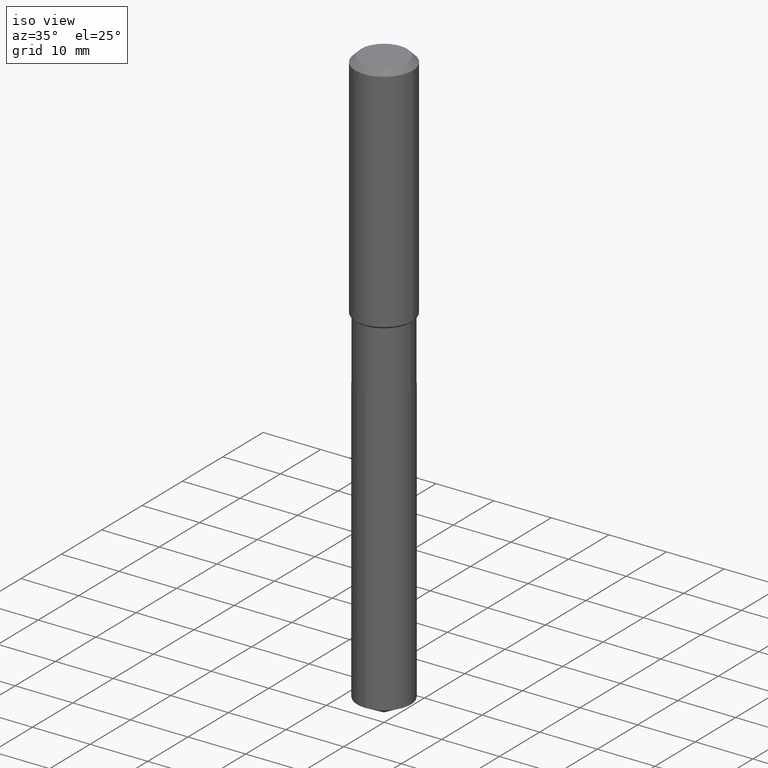
[diagram: clean part render]
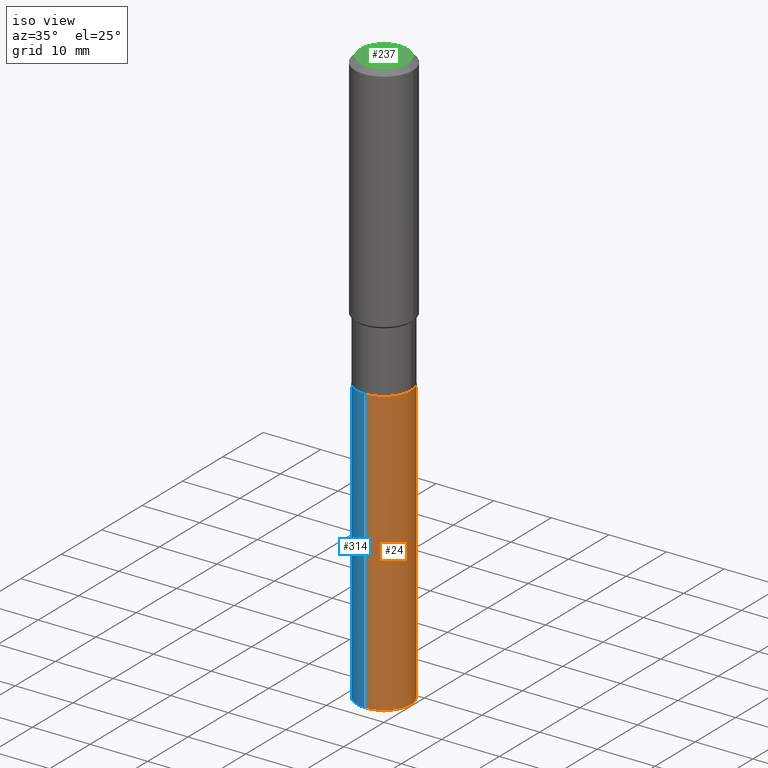
[diagram: same view with three faces highlighted in distinct colors, each labeled with its STEP entity id]
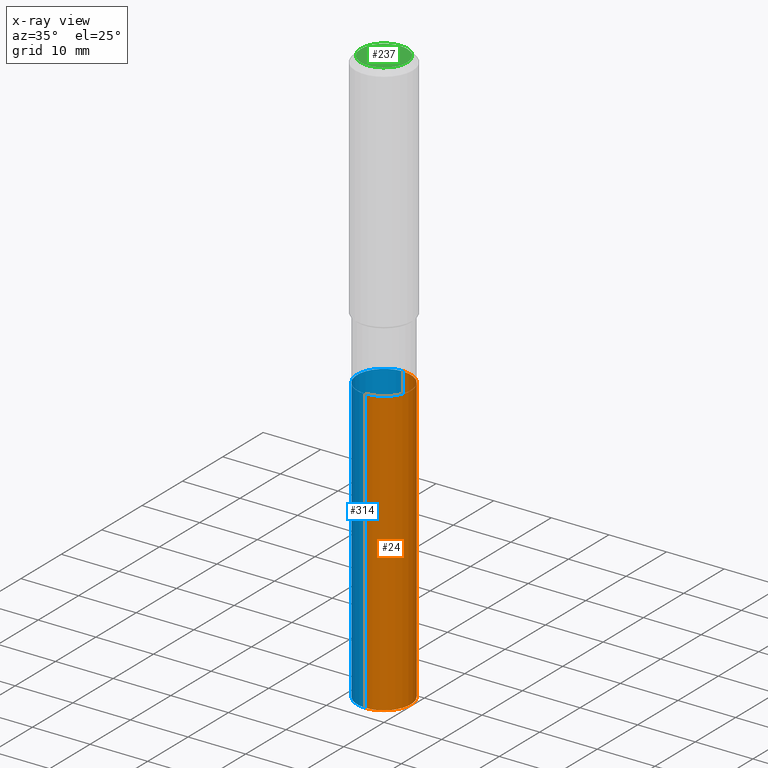
[diagram: x-ray of the same camera — body ghosted, the three highlighted faces saturated]
A machine part, iso view with three faces highlighted in distinct colors.
The next image is the same camera in x-ray (body ghosted, the three faces saturated) — at least one of them is partly hidden behind the body in this view.
Their STEP definitions:

[orange] entity #24 — the highlighted cylindrical surface (edge-blend (fillet) strip) has radius 4.6495 mm, axis along (-0, 0, 1).
#10 = EDGE_CURVE ( 'NONE', #14, #320, #252, .T. ) ;
#14 = VERTEX_POINT ( 'NONE', #475 ) ;
#22 = LINE ( 'NONE', #221, #322 ) ;
#24 = ADVANCED_FACE ( 'NONE', ( #219 ), #370, .T. ) ;
#27 = EDGE_CURVE ( 'NONE', #139, #326, #213, .T. ) ;
#30 = EDGE_CURVE ( 'NONE', #139, #14, #22, .T. ) ;
#46 = CARTESIAN_POINT ( 'NONE',  ( 1.300648477808960353E-15, 0.1830499999999929406, -2.019600000000000506 ) ) ;
#65 = CARTESIAN_POINT ( 'NONE',  ( 4.938868800971501707E-29, -7.051395711927616472E-15, -2.019600000000000062 ) ) ;
#90 = DIRECTION ( 'NONE',  ( -2.445495321874143772E-29, 3.491443366867307892E-15, 1.000000000000000000 ) ) ;
#138 = AXIS2_PLACEMENT_3D ( 'NONE', #65, #368, #329 ) ;
#139 = VERTEX_POINT ( 'NONE', #151 ) ;
#151 = CARTESIAN_POINT ( 'NONE',  ( -1.278231318150373834E-15, -0.1830500000000137850, -3.957770588534366585 ) ) ;
#159 = ORIENTED_EDGE ( 'NONE', *, *, #30, .F. ) ;
#172 = CARTESIAN_POINT ( 'NONE',  ( 4.938868800971501707E-29, -7.051395711927616472E-15, -2.019600000000000062 ) ) ;
#173 = EDGE_LOOP ( 'NONE', ( #421, #200, #345, #159 ) ) ;
#197 = CARTESIAN_POINT ( 'NONE',  ( 1.300648477808959564E-15, 0.1830499999999861127, -3.957770588534367917 ) ) ;
#200 = ORIENTED_EDGE ( 'NONE', *, *, #311, .T. ) ;
#213 = CIRCLE ( 'NONE', #420, 0.1830499999999999905 ) ;
#219 = FACE_OUTER_BOUND ( 'NONE', #173, .T. ) ;
#221 = CARTESIAN_POINT ( 'NONE',  ( -1.278231318150421166E-15, -0.1830500000000070127, -2.019599999999999618 ) ) ;
#252 = CIRCLE ( 'NONE', #289, 0.1830499999999999905 ) ;
#264 = CARTESIAN_POINT ( 'NONE',  ( 1.300648477808912429E-15, 0.1830499999999929406, -2.019600000000000506 ) ) ;
#271 = VECTOR ( 'NONE', #90, 39.37007874015748143 ) ;
#289 = AXIS2_PLACEMENT_3D ( 'NONE', #172, #445, #406 ) ;
#292 = DIRECTION ( 'NONE',  ( -6.982962677686264344E-15, -1.000000000000000000, 2.984810700534567995E-15 ) ) ;
#303 = LINE ( 'NONE', #264, #271 ) ;
#311 = EDGE_CURVE ( 'NONE', #326, #320, #303, .T. ) ;
#320 = VERTEX_POINT ( 'NONE', #46 ) ;
#322 = VECTOR ( 'NONE', #365, 39.37007874015748143 ) ;
#326 = VERTEX_POINT ( 'NONE', #197 ) ;
#329 = DIRECTION ( 'NONE',  ( -6.982962677686264344E-15, -1.000000000000000000, 2.984810700534567995E-15 ) ) ;
#345 = ORIENTED_EDGE ( 'NONE', *, *, #10, .F. ) ;
#362 = DIRECTION ( 'NONE',  ( -2.445495321874143772E-29, 3.491443366867307892E-15, 1.000000000000000000 ) ) ;
#365 = DIRECTION ( 'NONE',  ( -2.445495321874143772E-29, 3.491443366867307892E-15, 1.000000000000000000 ) ) ;
#368 = DIRECTION ( 'NONE',  ( -2.445495321874143772E-29, 3.491443366867307892E-15, 1.000000000000000000 ) ) ;
#370 = CYLINDRICAL_SURFACE ( 'NONE', #138, 0.1830499999999999905 ) ;
#406 = DIRECTION ( 'NONE',  ( -6.982962677686264344E-15, -1.000000000000000000, 2.984810700534567995E-15 ) ) ;
#420 = AXIS2_PLACEMENT_3D ( 'NONE', #478, #362, #292 ) ;
#421 = ORIENTED_EDGE ( 'NONE', *, *, #27, .T. ) ;
#445 = DIRECTION ( 'NONE',  ( -2.445495321874143772E-29, 3.491443366867307892E-15, 1.000000000000000000 ) ) ;
#475 = CARTESIAN_POINT ( 'NONE',  ( -1.278231318150421166E-15, -0.1830500000000070127, -2.019599999999999618 ) ) ;
#478 = CARTESIAN_POINT ( 'NONE',  ( 9.678655908226353486E-29, -1.381840855712323955E-14, -3.957770588534367029 ) ) ;

[blue] entity #314 — the highlighted cylindrical surface (edge-blend (fillet) strip) has radius 4.6495 mm, axis along (-0, 0, 1).
#14 = VERTEX_POINT ( 'NONE', #475 ) ;
#22 = LINE ( 'NONE', #221, #322 ) ;
#30 = EDGE_CURVE ( 'NONE', #139, #14, #22, .T. ) ;
#31 = DIRECTION ( 'NONE',  ( -6.982962677686264344E-15, -1.000000000000000000, 2.984810700534567995E-15 ) ) ;
#46 = CARTESIAN_POINT ( 'NONE',  ( 1.300648477808960353E-15, 0.1830499999999929406, -2.019600000000000506 ) ) ;
#51 = AXIS2_PLACEMENT_3D ( 'NONE', #293, #68, #31 ) ;
#68 = DIRECTION ( 'NONE',  ( -2.445495321874143772E-29, 3.491443366867307892E-15, 1.000000000000000000 ) ) ;
#90 = DIRECTION ( 'NONE',  ( -2.445495321874143772E-29, 3.491443366867307892E-15, 1.000000000000000000 ) ) ;
#112 = DIRECTION ( 'NONE',  ( -2.445495321874143772E-29, 3.491443366867307892E-15, 1.000000000000000000 ) ) ;
#114 = EDGE_CURVE ( 'NONE', #320, #14, #260, .T. ) ;
#121 = ORIENTED_EDGE ( 'NONE', *, *, #311, .F. ) ;
#139 = VERTEX_POINT ( 'NONE', #151 ) ;
#151 = CARTESIAN_POINT ( 'NONE',  ( -1.278231318150373834E-15, -0.1830500000000137850, -3.957770588534366585 ) ) ;
#160 = DIRECTION ( 'NONE',  ( -6.982962677686264344E-15, -1.000000000000000000, 2.984810700534567995E-15 ) ) ;
#165 = CIRCLE ( 'NONE', #175, 0.1830499999999999905 ) ;
#175 = AXIS2_PLACEMENT_3D ( 'NONE', #380, #112, #309 ) ;
#184 = EDGE_CURVE ( 'NONE', #326, #139, #165, .T. ) ;
#197 = CARTESIAN_POINT ( 'NONE',  ( 1.300648477808959564E-15, 0.1830499999999861127, -3.957770588534367917 ) ) ;
#221 = CARTESIAN_POINT ( 'NONE',  ( -1.278231318150421166E-15, -0.1830500000000070127, -2.019599999999999618 ) ) ;
#230 = FACE_OUTER_BOUND ( 'NONE', #389, .T. ) ;
#242 = ORIENTED_EDGE ( 'NONE', *, *, #184, .T. ) ;
#260 = CIRCLE ( 'NONE', #51, 0.1830499999999999905 ) ;
#264 = CARTESIAN_POINT ( 'NONE',  ( 1.300648477808912429E-15, 0.1830499999999929406, -2.019600000000000506 ) ) ;
#271 = VECTOR ( 'NONE', #90, 39.37007874015748143 ) ;
#273 = CYLINDRICAL_SURFACE ( 'NONE', #304, 0.1830499999999999905 ) ;
#293 = CARTESIAN_POINT ( 'NONE',  ( 4.938868800971501707E-29, -7.051395711927616472E-15, -2.019600000000000062 ) ) ;
#303 = LINE ( 'NONE', #264, #271 ) ;
#304 = AXIS2_PLACEMENT_3D ( 'NONE', #383, #433, #160 ) ;
#309 = DIRECTION ( 'NONE',  ( -6.982962677686264344E-15, -1.000000000000000000, 2.984810700534567995E-15 ) ) ;
#311 = EDGE_CURVE ( 'NONE', #326, #320, #303, .T. ) ;
#314 = ADVANCED_FACE ( 'NONE', ( #230 ), #273, .T. ) ;
#320 = VERTEX_POINT ( 'NONE', #46 ) ;
#322 = VECTOR ( 'NONE', #365, 39.37007874015748143 ) ;
#326 = VERTEX_POINT ( 'NONE', #197 ) ;
#349 = ORIENTED_EDGE ( 'NONE', *, *, #30, .T. ) ;
#365 = DIRECTION ( 'NONE',  ( -2.445495321874143772E-29, 3.491443366867307892E-15, 1.000000000000000000 ) ) ;
#380 = CARTESIAN_POINT ( 'NONE',  ( 9.678655908226353486E-29, -1.381840855712323955E-14, -3.957770588534367029 ) ) ;
#383 = CARTESIAN_POINT ( 'NONE',  ( 4.938868800971501707E-29, -7.051395711927616472E-15, -2.019600000000000062 ) ) ;
#389 = EDGE_LOOP ( 'NONE', ( #121, #242, #349, #405 ) ) ;
#405 = ORIENTED_EDGE ( 'NONE', *, *, #114, .F. ) ;
#433 = DIRECTION ( 'NONE',  ( -2.445495321874143772E-29, 3.491443366867307892E-15, 1.000000000000000000 ) ) ;
#475 = CARTESIAN_POINT ( 'NONE',  ( -1.278231318150421166E-15, -0.1830500000000070127, -2.019599999999999618 ) ) ;

[green] entity #237 — the highlighted planar face has unit normal (0, -0, -1).
#15 = DIRECTION ( 'NONE',  ( -2.445468806185136597E-29, 3.491481338843145583E-15, 1.000000000000000000 ) ) ;
#55 = AXIS2_PLACEMENT_3D ( 'NONE', #111, #336, #149 ) ;
#59 = ORIENTED_EDGE ( 'NONE', *, *, #443, .T. ) ;
#67 = AXIS2_PLACEMENT_3D ( 'NONE', #353, #15, #280 ) ;
#77 = CIRCLE ( 'NONE', #78, 0.1574800000000000089 ) ;
#78 = AXIS2_PLACEMENT_3D ( 'NONE', #466, #434, #148 ) ;
#83 = EDGE_LOOP ( 'NONE', ( #268, #59 ) ) ;
#100 = VERTEX_POINT ( 'NONE', #101 ) ;
#101 = CARTESIAN_POINT ( 'NONE',  ( 0.1574800000000000089, -1.284169937930321189E-15, 3.855188123724205385E-18 ) ) ;
#111 = CARTESIAN_POINT ( 'NONE',  ( -4.713871149261283817E-47, 6.730158695841841775E-33, 1.927594061857935365E-18 ) ) ;
#131 = CARTESIAN_POINT ( 'NONE',  ( -0.1574800000000000089, 1.168406772637159618E-15, 3.855188123707939751E-18 ) ) ;
#148 = DIRECTION ( 'NONE',  ( 1.000000000000000000, -6.982962677686265922E-15, 4.876223630392693006E-29 ) ) ;
#149 = DIRECTION ( 'NONE',  ( -1.000000000000000000, 6.982962677686265922E-15, -4.876176775795935793E-29 ) ) ;
#190 = PLANE ( 'NONE',  #55 ) ;
#206 = EDGE_CURVE ( 'NONE', #318, #100, #77, .T. ) ;
#237 = ADVANCED_FACE ( 'NONE', ( #453 ), #190, .F. ) ;
#268 = ORIENTED_EDGE ( 'NONE', *, *, #206, .T. ) ;
#280 = DIRECTION ( 'NONE',  ( 1.000000000000000000, -6.982962677686265922E-15, 4.876223630392693006E-29 ) ) ;
#318 = VERTEX_POINT ( 'NONE', #131 ) ;
#336 = DIRECTION ( 'NONE',  ( 2.438088387897960049E-29, -3.491481338843145188E-15, -1.000000000000000000 ) ) ;
#353 = CARTESIAN_POINT ( 'NONE',  ( -9.427742298522567634E-47, 1.346031739168368355E-32, 3.855188123715870730E-18 ) ) ;
#415 = CIRCLE ( 'NONE', #67, 0.1574800000000000089 ) ;
#434 = DIRECTION ( 'NONE',  ( -2.445468806185136597E-29, 3.491481338843145583E-15, 1.000000000000000000 ) ) ;
#443 = EDGE_CURVE ( 'NONE', #100, #318, #415, .T. ) ;
#453 = FACE_OUTER_BOUND ( 'NONE', #83, .T. ) ;
#466 = CARTESIAN_POINT ( 'NONE',  ( -9.427742298522567634E-47, 1.346031739168368355E-32, 3.855188123715870730E-18 ) ) ;